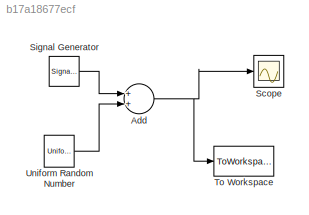
MODEL slx_b17a18677ecf
KIND model
BLOCK [Sum] Add
  InputSameDT = off
  OutDataTypeStr = Inherit: Inherit via internal rule
  Ports = [2, 1]
  SaturateOnIntegerOverflow = off
BLOCK [Scope] Scope
  Floating = off
  NumInputPorts = 1
  Ports = [1]
  ShowLegends = off
BLOCK [SignalGenerator] Signal Generator
  Amplitude = 2
  Frequency = 0.5
  Ports = [0, 1]
BLOCK [ToWorkspace] To Workspace
  FixptAsFi = on
  MaxDataPoints = inf
  Ports = [1]
  SampleTime = -1
  Save2DSignal = 3-D array (concatenate along third dimension)
  SaveFormat = Timeseries
  VariableName = simout
BLOCK [UniformRandomNumber] Uniform Random Number
  SampleTime = 0.1
NET Add:1 -> Scope:1, To Workspace:1
LINE Signal Generator:1 -> Add:1
LINE Uniform Random Number:1 -> Add:2
note: NET lines group one-source signal fan-out (src -> all destinations, sorted); 1:1 wires keep LINE
